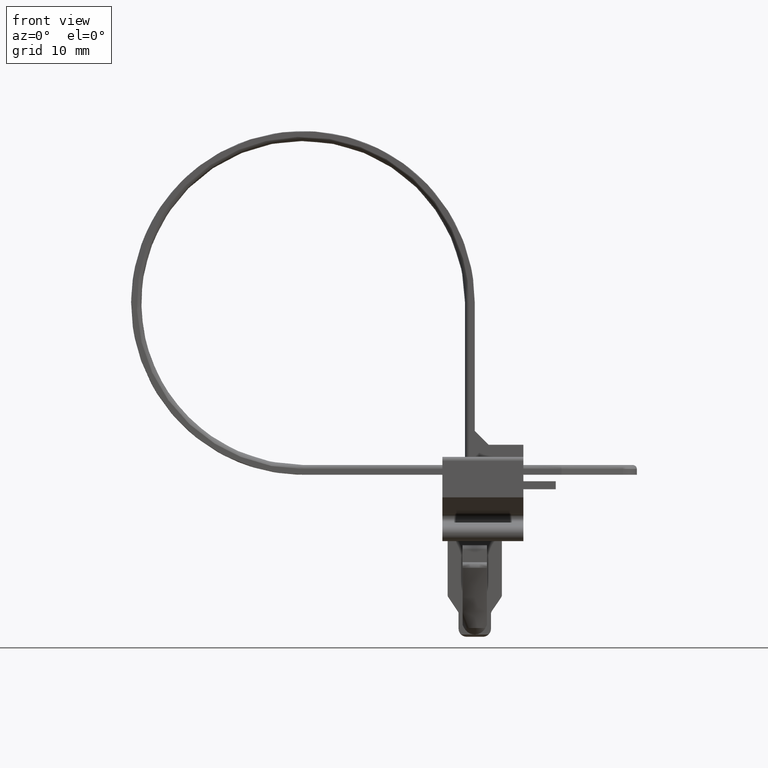
[diagram: clean part render]
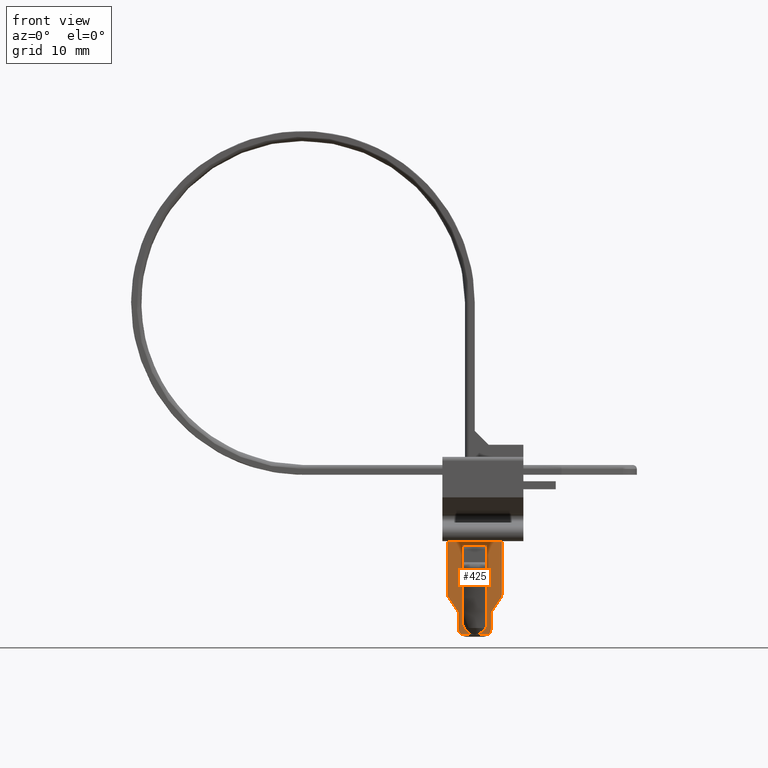
[diagram: same view with one face highlighted and labeled with its STEP entity id]
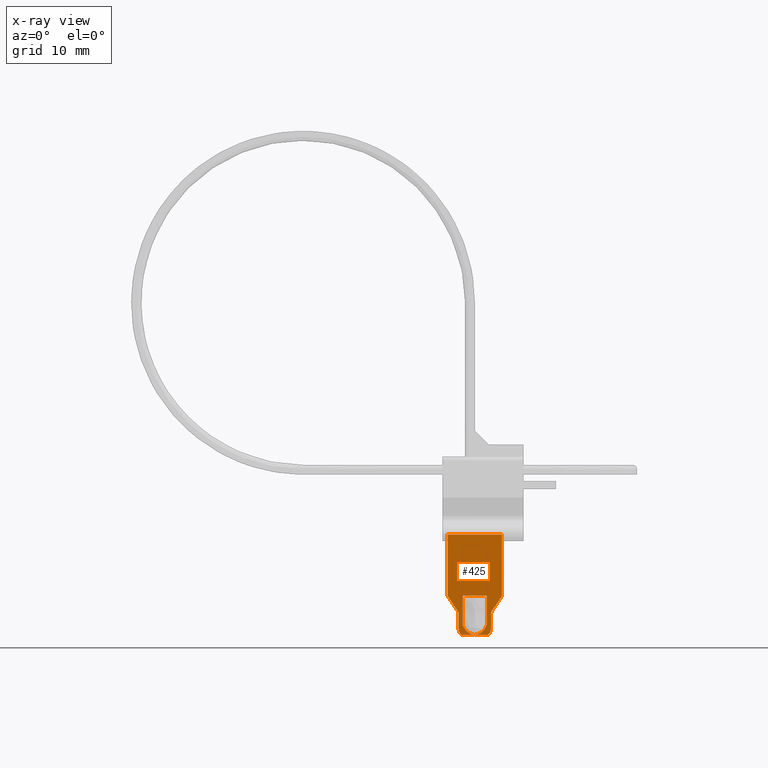
[diagram: x-ray of the same camera — body ghosted, the highlighted face saturated]
A machine part, front view. The second image highlights one B-rep face of the part: STEP entity #425.
The next image is the same camera in x-ray: the body ghosted, the highlighted face saturated — about 0% of this face is hidden behind the body in this view.
In plain terms, the highlighted face is a freeform B-spline surface patch.
Its self-contained STEP definition (entity closure, byte-faithful):
#242=CARTESIAN_POINT('',(7.515334887196288,-0.950000000000017,-31.535073138422931));
#243=CARTESIAN_POINT('',(14.884665172706381,-0.950000000000017,-31.535073138422931));
#244=CARTESIAN_POINT('',(7.515334887196288,-0.950000000000017,-17.984642927539952));
#245=CARTESIAN_POINT('',(14.884665172706381,-0.950000000000017,-17.984642927539952));
#246=B_SPLINE_SURFACE_WITH_KNOTS('',1,1,((#242,#244),(#243,#245)),.UNSPECIFIED.,.F.,.F.,.U.,(2,2),(2,2),(0.0,7.369330285510094),(0.0,13.550430210882981),.UNSPECIFIED.);
#247=CARTESIAN_POINT('',(14.550000000000001,-0.950000000000017,-18.600010999999899));
#248=VERTEX_POINT('',#247);
#249=CARTESIAN_POINT('',(14.550000000000001,-0.950000000000000,-26.047041999999799));
#250=VERTEX_POINT('',#249);
#251=CARTESIAN_POINT('',(14.550000000000001,-0.950000000000017,-18.600010999999899));
#252=CARTESIAN_POINT('',(14.550000000000001,-0.950000000000000,-26.047041999999799));
#253=QUASI_UNIFORM_CURVE('',1,(#251,#252),.UNSPECIFIED.,.F.,.U.);
#254=EDGE_CURVE('',#248,#250,#253,.T.);
#255=ORIENTED_EDGE('',*,*,#254,.F.);
#256=CARTESIAN_POINT('',(7.850000000000000,-0.950000000000017,-18.600010999999899));
#257=VERTEX_POINT('',#256);
#258=CARTESIAN_POINT('',(14.550000000000001,-0.950000000000017,-18.600010999999899));
#259=CARTESIAN_POINT('',(7.850000000000000,-0.950000000000017,-18.600010999999899));
#260=QUASI_UNIFORM_CURVE('',1,(#258,#259),.UNSPECIFIED.,.F.,.U.);
#261=EDGE_CURVE('',#248,#257,#260,.T.);
#262=ORIENTED_EDGE('',*,*,#261,.T.);
#263=CARTESIAN_POINT('',(7.850000000000000,-0.950000000000000,-26.047041999999799));
#264=VERTEX_POINT('',#263);
#265=CARTESIAN_POINT('',(7.850000000000000,-0.950000000000000,-26.047041999999799));
#266=CARTESIAN_POINT('',(7.850000000000000,-0.950000000000017,-18.600010999999899));
#267=QUASI_UNIFORM_CURVE('',1,(#265,#266),.UNSPECIFIED.,.F.,.U.);
#268=EDGE_CURVE('',#264,#257,#267,.T.);
#269=ORIENTED_EDGE('',*,*,#268,.F.);
#270=CARTESIAN_POINT('',(7.935575663011859,-0.950000000000000,-26.326778427573899));
#271=VERTEX_POINT('',#270);
#272=CARTESIAN_POINT('',(7.850000000000000,-0.950000000000000,-26.047041999999799));
#273=CARTESIAN_POINT('',(7.849754404431883,-0.949999999999999,-26.146062985090190));
#274=CARTESIAN_POINT('',(7.880046869033992,-0.950000000000000,-26.244817179773921));
#275=CARTESIAN_POINT('',(7.935575663011859,-0.950000000000000,-26.326778427573899));
#276=B_SPLINE_CURVE_WITH_KNOTS('',3,(#272,#273,#274,#275),.UNSPECIFIED.,.F.,.U.,(4,4),(0.000000021103997,0.296891857960157),.UNSPECIFIED.);
#277=EDGE_CURVE('',#264,#271,#276,.T.);
#278=ORIENTED_EDGE('',*,*,#277,.T.);
#279=CARTESIAN_POINT('',(9.114424336988060,-0.950000000000000,-28.073221572425751));
#280=VERTEX_POINT('',#279);
#281=CARTESIAN_POINT('',(9.114424336988060,-0.950000000000000,-28.073221572425751));
#282=CARTESIAN_POINT('',(7.935575663011859,-0.950000000000000,-26.326778427573899));
#283=QUASI_UNIFORM_CURVE('',1,(#281,#282),.UNSPECIFIED.,.F.,.U.);
#284=EDGE_CURVE('',#280,#271,#283,.T.);
#285=ORIENTED_EDGE('',*,*,#284,.F.);
#286=CARTESIAN_POINT('',(9.199999999999999,-0.950000000000000,-28.352957999999902));
#287=VERTEX_POINT('',#286);
#288=CARTESIAN_POINT('',(9.199999999999999,-0.950000000000000,-28.352957999999902));
#289=CARTESIAN_POINT('',(9.200169688264325,-0.950000000000000,-28.253956953694651));
#290=CARTESIAN_POINT('',(9.170027830001615,-0.950000000000000,-28.155160932299641));
#291=CARTESIAN_POINT('',(9.114424336988060,-0.950000000000000,-28.073221572425751));
#292=B_SPLINE_CURVE_WITH_KNOTS('',3,(#288,#289,#290,#291),.UNSPECIFIED.,.F.,.U.,(4,4),(0.000000021104081,0.296891857960206),.UNSPECIFIED.);
#293=EDGE_CURVE('',#287,#280,#292,.T.);
#294=ORIENTED_EDGE('',*,*,#293,.F.);
#295=CARTESIAN_POINT('',(9.199999999999999,-0.950000000000000,-30.199999999999999));
#296=VERTEX_POINT('',#295);
#297=CARTESIAN_POINT('',(9.199999999999999,-0.950000000000000,-30.199999999999999));
#298=CARTESIAN_POINT('',(9.199999999999999,-0.950000000000000,-28.352957999999902));
#299=QUASI_UNIFORM_CURVE('',1,(#297,#298),.UNSPECIFIED.,.F.,.U.);
#300=EDGE_CURVE('',#296,#287,#299,.T.);
#301=ORIENTED_EDGE('',*,*,#300,.F.);
#302=CARTESIAN_POINT('',(9.505719843925190,-0.950000000000000,-30.919704845669699));
#303=VERTEX_POINT('',#302);
#304=CARTESIAN_POINT('',(9.199999999999999,-0.950000000000000,-30.199999999999999));
#305=CARTESIAN_POINT('',(9.199903460524666,-0.949999999999998,-30.325543563251571));
#306=CARTESIAN_POINT('',(9.251097030220102,-0.950000000000007,-30.593242998204872));
#307=CARTESIAN_POINT('',(9.403179275244892,-0.949999999999995,-30.821056081587539));
#308=CARTESIAN_POINT('',(9.505719843925190,-0.950000000000000,-30.919704845669699));
#309=B_SPLINE_CURVE_WITH_KNOTS('',3,(#304,#305,#306,#307,#308),.UNSPECIFIED.,.F.,.U.,(4,1,4),(0.000000037725520,0.376602297691965,0.803398195447823),.UNSPECIFIED.);
#310=EDGE_CURVE('',#296,#303,#309,.T.);
#311=ORIENTED_EDGE('',*,*,#310,.T.);
#312=CARTESIAN_POINT('',(11.199999999999999,-0.950000000000017,-30.919704845669699));
#313=VERTEX_POINT('',#312);
#314=CARTESIAN_POINT('',(9.505719843925190,-0.950000000000000,-30.919704845669699));
#315=CARTESIAN_POINT('',(11.199999999999999,-0.950000000000017,-30.919704845669699));
#316=QUASI_UNIFORM_CURVE('',1,(#314,#315),.UNSPECIFIED.,.F.,.U.);
#317=EDGE_CURVE('',#303,#313,#316,.T.);
#318=ORIENTED_EDGE('',*,*,#317,.T.);
#319=CARTESIAN_POINT('',(9.893490135839809,-0.950000000000017,-30.123087999999800));
#320=VERTEX_POINT('',#319);
#321=CARTESIAN_POINT('',(9.893490135839809,-0.950000000000017,-30.123087999999800));
#322=CARTESIAN_POINT('',(9.966357040317210,-0.950000000000018,-30.264723481475940));
#323=CARTESIAN_POINT('',(10.123345809750520,-0.950000000000015,-30.476095261953450));
#324=CARTESIAN_POINT('',(10.401378634363340,-0.950000000000020,-30.695097793364521));
#325=CARTESIAN_POINT('',(10.739071638098070,-0.950000000000012,-30.866940888922290));
#326=CARTESIAN_POINT('',(11.015553345611400,-0.950000000000019,-30.919871329945661));
#327=CARTESIAN_POINT('',(11.199999999999999,-0.950000000000017,-30.919704845669699));
#328=B_SPLINE_CURVE_WITH_KNOTS('',3,(#321,#322,#323,#324,#325,#326,#327),.UNSPECIFIED.,.F.,.U.,(4,1,1,1,4),(0.000000053852144,0.477810098939628,0.779598238402333,1.056202406903150,1.609459544915636),.UNSPECIFIED.);
#329=EDGE_CURVE('',#320,#313,#328,.T.);
#330=ORIENTED_EDGE('',*,*,#329,.F.);
#331=CARTESIAN_POINT('',(9.700000000000001,-0.950000000000016,-29.738744531180750));
#332=VERTEX_POINT('',#331);
#333=CARTESIAN_POINT('',(9.700000000000001,-0.950000000000016,-29.738744531180750));
#334=CARTESIAN_POINT('',(9.893490135839809,-0.950000000000017,-30.123087999999800));
#335=QUASI_UNIFORM_CURVE('',1,(#333,#334),.UNSPECIFIED.,.F.,.U.);
#336=EDGE_CURVE('',#332,#320,#335,.T.);
#337=ORIENTED_EDGE('',*,*,#336,.F.);
#338=CARTESIAN_POINT('',(9.700000000000001,-0.950000000000000,-26.100010999999899));
#339=VERTEX_POINT('',#338);
#340=CARTESIAN_POINT('',(9.700000000000001,-0.950000000000016,-29.738744531180750));
#341=CARTESIAN_POINT('',(9.700000000000001,-0.950000000000000,-26.100010999999899));
#342=QUASI_UNIFORM_CURVE('',1,(#340,#341),.UNSPECIFIED.,.F.,.U.);
#343=EDGE_CURVE('',#332,#339,#342,.T.);
#344=ORIENTED_EDGE('',*,*,#343,.T.);
#345=CARTESIAN_POINT('',(12.699999999999999,-0.950000000000000,-26.100010999999899));
#346=VERTEX_POINT('',#345);
#347=CARTESIAN_POINT('',(12.699999999999999,-0.950000000000000,-26.100010999999899));
#348=CARTESIAN_POINT('',(9.700000000000001,-0.950000000000000,-26.100010999999899));
#349=QUASI_UNIFORM_CURVE('',1,(#347,#348),.UNSPECIFIED.,.F.,.U.);
#350=EDGE_CURVE('',#346,#339,#349,.T.);
#351=ORIENTED_EDGE('',*,*,#350,.F.);
#352=CARTESIAN_POINT('',(12.699999999999999,-0.949999999999920,-29.738744531181101));
#353=VERTEX_POINT('',#352);
#354=CARTESIAN_POINT('',(12.699999999999999,-0.949999999999920,-29.738744531181101));
#355=CARTESIAN_POINT('',(12.699999999999999,-0.950000000000000,-26.100010999999899));
#356=QUASI_UNIFORM_CURVE('',1,(#354,#355),.UNSPECIFIED.,.F.,.U.);
#357=EDGE_CURVE('',#353,#346,#356,.T.);
#358=ORIENTED_EDGE('',*,*,#357,.F.);
#359=CARTESIAN_POINT('',(12.506509864160201,-0.950000000000017,-30.123087999999800));
#360=VERTEX_POINT('',#359);
#361=CARTESIAN_POINT('',(12.506509864160201,-0.950000000000017,-30.123087999999800));
#362=CARTESIAN_POINT('',(12.699999999999999,-0.949999999999920,-29.738744531181101));
#363=QUASI_UNIFORM_CURVE('',1,(#361,#362),.UNSPECIFIED.,.F.,.U.);
#364=EDGE_CURVE('',#360,#353,#363,.T.);
#365=ORIENTED_EDGE('',*,*,#364,.F.);
#366=CARTESIAN_POINT('',(11.199999999999999,-0.950000000000017,-30.919704845669699));
#367=CARTESIAN_POINT('',(11.359281187813471,-0.950000000000017,-30.919794104213970));
#368=CARTESIAN_POINT('',(11.610691920501729,-0.950000000000017,-30.878409904902451));
#369=CARTESIAN_POINT('',(11.972172601504830,-0.950000000000018,-30.717331947510861));
#370=CARTESIAN_POINT('',(12.273617976684941,-0.950000000000018,-30.483993623628471));
#371=CARTESIAN_POINT('',(12.441289266871250,-0.950000000000017,-30.249792693353761));
#372=CARTESIAN_POINT('',(12.506509864160201,-0.950000000000017,-30.123087999999800));
#373=B_SPLINE_CURVE_WITH_KNOTS('',3,(#366,#367,#368,#369,#370,#371,#372),.UNSPECIFIED.,.F.,.U.,(4,1,1,1,4),(0.000000053848070,0.477810098937038,0.754446686483741,1.181945882786160,1.609459544915670),.UNSPECIFIED.);
#374=EDGE_CURVE('',#313,#360,#373,.T.);
#375=ORIENTED_EDGE('',*,*,#374,.F.);
#376=CARTESIAN_POINT('',(12.894280156074799,-0.950000000000000,-30.919704845669699));
#377=VERTEX_POINT('',#376);
#378=CARTESIAN_POINT('',(11.199999999999999,-0.950000000000017,-30.919704845669699));
#379=CARTESIAN_POINT('',(12.894280156074799,-0.950000000000000,-30.919704845669699));
#380=QUASI_UNIFORM_CURVE('',1,(#378,#379),.UNSPECIFIED.,.F.,.U.);
#381=EDGE_CURVE('',#313,#377,#380,.T.);
#382=ORIENTED_EDGE('',*,*,#381,.T.);
#383=CARTESIAN_POINT('',(13.199999999999999,-0.950000000000000,-30.199999999999999));
#384=VERTEX_POINT('',#383);
#385=CARTESIAN_POINT('',(12.894280156074799,-0.950000000000000,-30.919704845669699));
#386=CARTESIAN_POINT('',(12.984722287526401,-0.950000000000000,-30.832625453687040));
#387=CARTESIAN_POINT('',(13.141789092259570,-0.950000000000001,-30.609887910310832));
#388=CARTESIAN_POINT('',(13.200206931086599,-0.950000000000000,-30.342297110481962));
#389=CARTESIAN_POINT('',(13.199999999999999,-0.950000000000000,-30.199999999999999));
#390=B_SPLINE_CURVE_WITH_KNOTS('',3,(#385,#386,#387,#388,#389),.UNSPECIFIED.,.F.,.U.,(4,1,4),(0.000000037725283,0.376602297691755,0.803398195447828),.UNSPECIFIED.);
#391=EDGE_CURVE('',#377,#384,#390,.T.);
#392=ORIENTED_EDGE('',*,*,#391,.T.);
#393=CARTESIAN_POINT('',(13.199999999999999,-0.950000000000000,-28.352957999999902));
#394=VERTEX_POINT('',#393);
#395=CARTESIAN_POINT('',(13.199999999999999,-0.950000000000000,-28.352957999999902));
#396=CARTESIAN_POINT('',(13.199999999999999,-0.950000000000000,-30.199999999999999));
#397=QUASI_UNIFORM_CURVE('',1,(#395,#396),.UNSPECIFIED.,.F.,.U.);
#398=EDGE_CURVE('',#394,#384,#397,.T.);
#399=ORIENTED_EDGE('',*,*,#398,.F.);
#400=CARTESIAN_POINT('',(13.285575999999899,-0.950000000000000,-28.073220999999801));
#401=VERTEX_POINT('',#400);
#402=CARTESIAN_POINT('',(13.285575999999899,-0.950000000000000,-28.073220999999801));
#403=CARTESIAN_POINT('',(13.230046131214721,-0.950000000000000,-28.155182587419699));
#404=CARTESIAN_POINT('',(13.199756871253699,-0.950000000000000,-28.253935386139670));
#405=CARTESIAN_POINT('',(13.199999999999999,-0.950000000000000,-28.352957999999902));
#406=B_SPLINE_CURVE_WITH_KNOTS('',3,(#402,#403,#404,#405),.UNSPECIFIED.,.F.,.U.,(4,4),(0.000000021104246,0.296892529077847),.UNSPECIFIED.);
#407=EDGE_CURVE('',#401,#394,#406,.T.);
#408=ORIENTED_EDGE('',*,*,#407,.F.);
#409=CARTESIAN_POINT('',(14.464424336988140,-0.950000000000000,-26.326778427573899));
#410=VERTEX_POINT('',#409);
#411=CARTESIAN_POINT('',(14.464424336988140,-0.950000000000000,-26.326778427573899));
#412=CARTESIAN_POINT('',(13.285575999999899,-0.950000000000000,-28.073220999999801));
#413=QUASI_UNIFORM_CURVE('',1,(#411,#412),.UNSPECIFIED.,.F.,.U.);
#414=EDGE_CURVE('',#410,#401,#413,.T.);
#415=ORIENTED_EDGE('',*,*,#414,.F.);
#416=CARTESIAN_POINT('',(14.464424336988140,-0.950000000000000,-26.326778427573899));
#417=CARTESIAN_POINT('',(14.519955306549811,-0.950000000000001,-26.244816941025050));
#418=CARTESIAN_POINT('',(14.550242167990101,-0.950000000000000,-26.146064410274601));
#419=CARTESIAN_POINT('',(14.550000000000001,-0.950000000000000,-26.047041999999799));
#420=B_SPLINE_CURVE_WITH_KNOTS('',3,(#416,#417,#418,#419),.UNSPECIFIED.,.F.,.U.,(4,4),(0.000000021103913,0.296891857960157),.UNSPECIFIED.);
#421=EDGE_CURVE('',#410,#250,#420,.T.);
#422=ORIENTED_EDGE('',*,*,#421,.T.);
#423=EDGE_LOOP('',(#255,#262,#269,#278,#285,#294,#301,#311,#318,#330,#337,#344,#351,#358,#365,#375,#382,#392,#399,#408,#415,#422));
#424=FACE_OUTER_BOUND('',#423,.T.);
#425=ADVANCED_FACE('',(#424),#246,.T.);